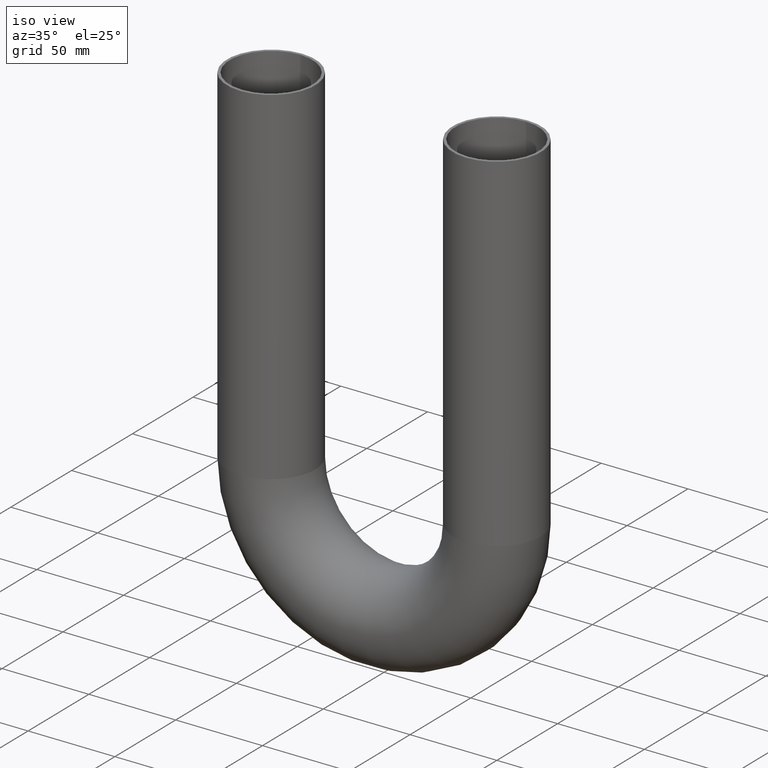
[diagram: clean part render]
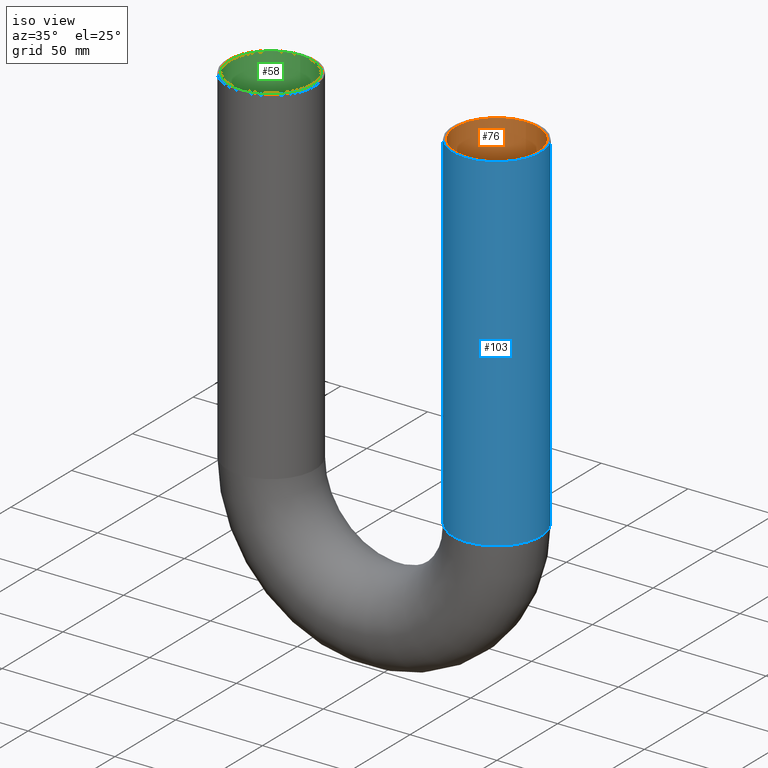
[diagram: same view with three faces highlighted in distinct colors, each labeled with its STEP entity id]
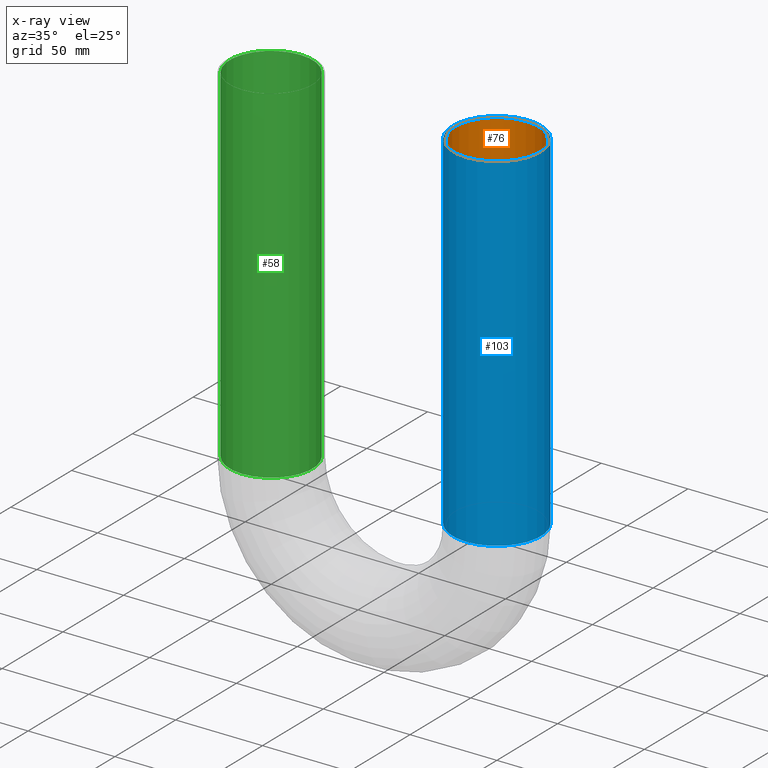
[diagram: x-ray of the same camera — body ghosted, the three highlighted faces saturated]
A machine part, iso view with three faces highlighted in distinct colors.
The next image is the same camera in x-ray (body ghosted, the three faces saturated) — at least one of them is partly hidden behind the body in this view.
Their STEP definitions:

[orange] entity #76 — the highlighted cylindrical surface (bore or boss wall) has radius 23.9 mm, axis along (0, -0, -1).
#76=ADVANCED_FACE('',(#148,#150),#152,.F.);
#148=FACE_OUTER_BOUND('',#149,.T.);
#149=EDGE_LOOP('',(#206));
#150=FACE_OUTER_BOUND('',#151,.T.);
#151=EDGE_LOOP('',(#207));
#152=CYLINDRICAL_SURFACE('',#153,23.9);
#153=AXIS2_PLACEMENT_3D('',#154,#155,#156);
#154=CARTESIAN_POINT('',(65.,0.,-7.9602041944578E-015));
#155=DIRECTION('',(2.1316282072803E-016,-0.,-1.));
#156=DIRECTION('',(0.,1.,0.));
#206=ORIENTED_EDGE('',*,*,#221,.F.);
#207=ORIENTED_EDGE('',*,*,#220,.T.);
#220=EDGE_CURVE('',#230,#230,#231,.T.);
#221=EDGE_CURVE('',#232,#232,#233,.T.);
#230=VERTEX_POINT('',#252);
#231=CIRCLE('',#253,23.9);
#232=VERTEX_POINT('',#257);
#233=CIRCLE('',#258,23.9);
#252=CARTESIAN_POINT('',(65.,23.9,-7.9602041944578E-015));
#253=AXIS2_PLACEMENT_3D('',#254,#255,#256);
#254=CARTESIAN_POINT('',(65.,0.,-7.9602041944578E-015));
#255=DIRECTION('',(-1.22464679914735E-016,-0.,-1.));
#256=DIRECTION('',(2.44929359829471E-016,1.,-2.99951956532372E-032));
#257=CARTESIAN_POINT('',(65.,23.9,200.));
#258=AXIS2_PLACEMENT_3D('',#259,#260,#261);
#259=CARTESIAN_POINT('',(65.,0.,200.));
#260=DIRECTION('',(9.06981408132947E-017,0.,-1.));
#261=DIRECTION('',(-1.1331077795296E-015,1.,-1.02770768944415E-031));

[blue] entity #103 — the highlighted cylindrical surface (bore or boss wall) has radius 25.4 mm, axis along (0, -0, -1).
#103=ADVANCED_FACE('',(#175,#177),#179,.T.);
#175=FACE_OUTER_BOUND('',#176,.T.);
#176=EDGE_LOOP('',(#212));
#177=FACE_OUTER_BOUND('',#178,.T.);
#178=EDGE_LOOP('',(#213));
#179=CYLINDRICAL_SURFACE('',#180,25.4);
#180=AXIS2_PLACEMENT_3D('',#181,#182,#183);
#181=CARTESIAN_POINT('',(65.,0.,-7.9602041944578E-015));
#182=DIRECTION('',(2.1316282072803E-016,-0.,-1.));
#183=DIRECTION('',(0.,1.,0.));
#212=ORIENTED_EDGE('',*,*,#222,.T.);
#213=ORIENTED_EDGE('',*,*,#224,.F.);
#222=EDGE_CURVE('',#234,#234,#235,.T.);
#224=EDGE_CURVE('',#238,#238,#239,.T.);
#234=VERTEX_POINT('',#262);
#235=CIRCLE('',#263,25.4);
#238=VERTEX_POINT('',#272);
#239=CIRCLE('',#273,25.4);
#262=CARTESIAN_POINT('',(65.,25.4,200.));
#263=AXIS2_PLACEMENT_3D('',#264,#265,#266);
#264=CARTESIAN_POINT('',(65.,0.,200.));
#265=DIRECTION('',(9.06981408132947E-017,0.,-1.));
#266=DIRECTION('',(0.,1.,0.));
#272=CARTESIAN_POINT('',(65.,25.4,-7.9602041944578E-015));
#273=AXIS2_PLACEMENT_3D('',#274,#275,#276);
#274=CARTESIAN_POINT('',(65.,0.,-7.9602041944578E-015));
#275=DIRECTION('',(-1.22464679914735E-016,-0.,-1.));
#276=DIRECTION('',(2.44929359829471E-016,1.,-2.99951956532371E-032));

[green] entity #58 — the highlighted cylindrical surface (bore or boss wall) has radius 23.9 mm, axis along (-0, -0, 1).
#58=ADVANCED_FACE('',(#130,#132),#134,.F.);
#130=FACE_OUTER_BOUND('',#131,.T.);
#131=EDGE_LOOP('',(#202));
#132=FACE_OUTER_BOUND('',#133,.T.);
#133=EDGE_LOOP('',(#203));
#134=CYLINDRICAL_SURFACE('',#135,23.9);
#135=AXIS2_PLACEMENT_3D('',#136,#137,#138);
#136=CARTESIAN_POINT('',(-65.,0.,200.));
#137=DIRECTION('',(-2.1316282072803E-016,-0.,1.));
#138=DIRECTION('',(0.,1.,0.));
#202=ORIENTED_EDGE('',*,*,#218,.T.);
#203=ORIENTED_EDGE('',*,*,#219,.F.);
#218=EDGE_CURVE('',#226,#226,#227,.T.);
#219=EDGE_CURVE('',#228,#228,#229,.T.);
#226=VERTEX_POINT('',#242);
#227=CIRCLE('',#243,23.9);
#228=VERTEX_POINT('',#247);
#229=CIRCLE('',#248,23.9);
#242=CARTESIAN_POINT('',(-65.,23.9,200.));
#243=AXIS2_PLACEMENT_3D('',#244,#245,#246);
#244=CARTESIAN_POINT('',(-65.,0.,200.));
#245=DIRECTION('',(-2.1316282072803E-016,0.,1.));
#246=DIRECTION('',(0.,1.,0.));
#247=CARTESIAN_POINT('',(-65.,23.9,0.));
#248=AXIS2_PLACEMENT_3D('',#249,#250,#251);
#249=CARTESIAN_POINT('',(-65.,0.,0.));
#250=DIRECTION('',(-2.1316282072803E-016,0.,1.));
#251=DIRECTION('',(0.,1.,0.));